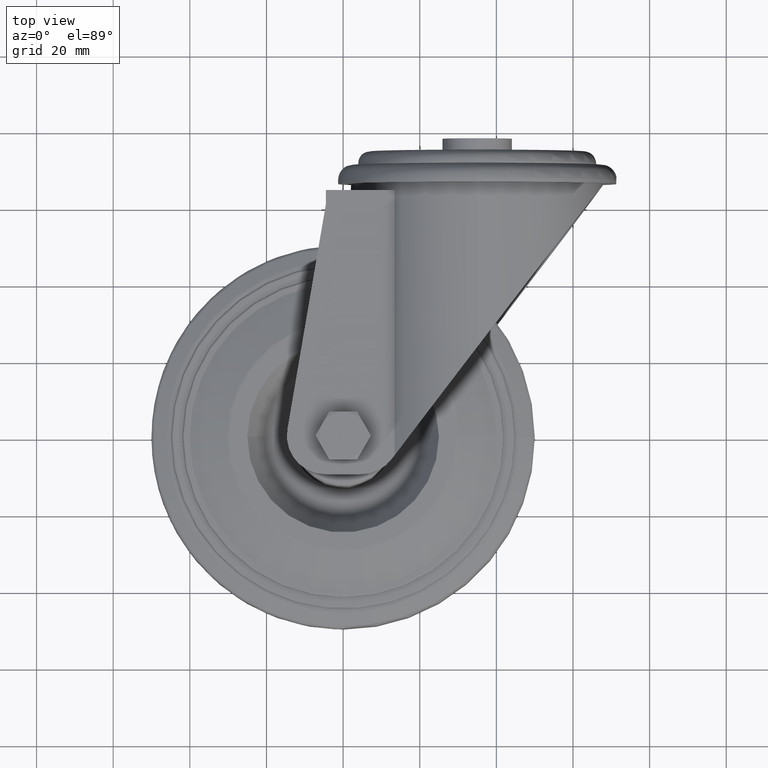
[diagram: clean part render]
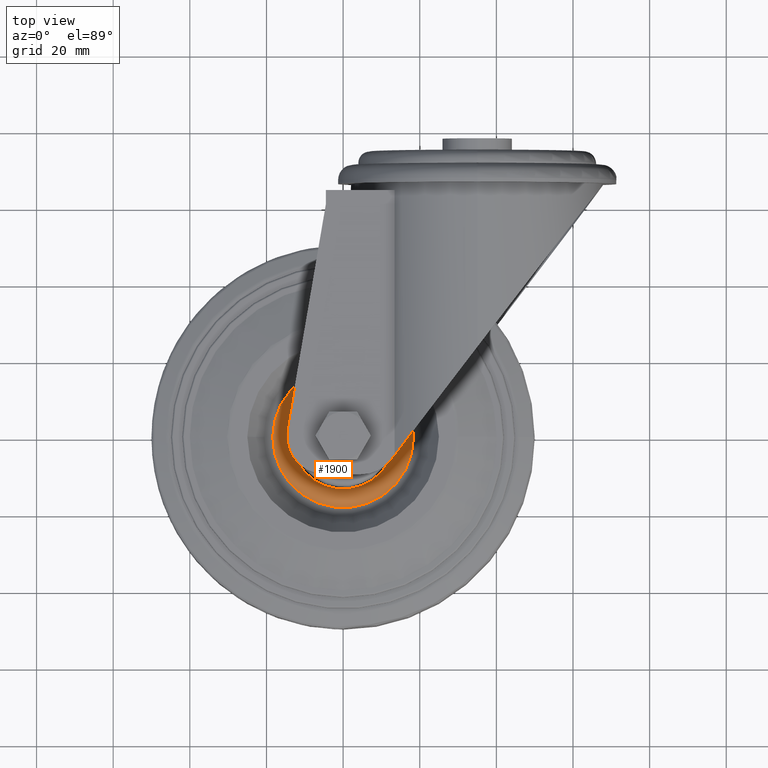
[diagram: same view with one face highlighted and labeled with its STEP entity id]
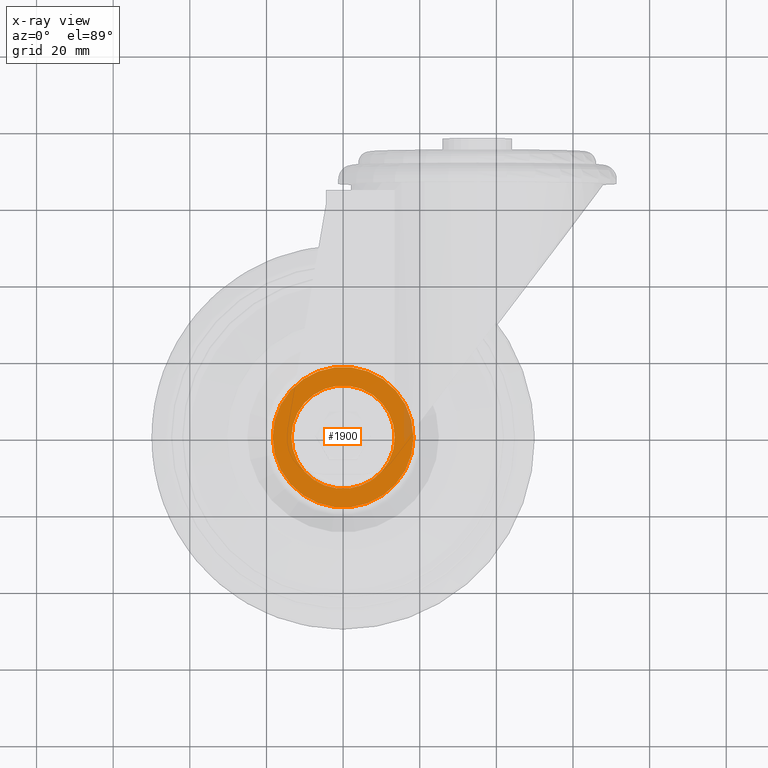
[diagram: x-ray of the same camera — body ghosted, the highlighted face saturated]
A machine part, top view. The second image highlights one B-rep face of the part: STEP entity #1900.
The next image is the same camera in x-ray: the body ghosted, the highlighted face saturated — about 3% of this face is hidden behind the body in this view.
In plain terms, the highlighted planar face has unit normal (-0, 0, 1).
Its self-contained STEP definition (entity closure, byte-faithful):
#200=FACE_BOUND('',#505,.T.);
#250=PLANE('',#2235);
#356=FACE_OUTER_BOUND('',#504,.T.);
#504=EDGE_LOOP('',(#1665));
#505=EDGE_LOOP('',(#1666));
#630=CIRCLE('',#2234,18.3604719043193);
#631=CIRCLE('',#2236,13.4716700135474);
#957=VERTEX_POINT('',#3465);
#958=VERTEX_POINT('',#3469);
#1197=EDGE_CURVE('',#957,#957,#630,.T.);
#1198=EDGE_CURVE('',#958,#958,#631,.T.);
#1665=ORIENTED_EDGE('',*,*,#1197,.F.);
#1666=ORIENTED_EDGE('',*,*,#1198,.F.);
#1900=ADVANCED_FACE('',(#356,#200),#250,.T.);
#2234=AXIS2_PLACEMENT_3D('',#3467,#2768,#2769);
#2235=AXIS2_PLACEMENT_3D('',#3468,#2770,#2771);
#2236=AXIS2_PLACEMENT_3D('',#3470,#2772,#2773);
#2768=DIRECTION('center_axis',(6.12323399573677E-17,0.,-1.));
#2769=DIRECTION('ref_axis',(-1.,0.,-6.12323399573677E-17));
#2770=DIRECTION('center_axis',(-6.12323399573677E-17,0.,1.));
#2771=DIRECTION('ref_axis',(1.,0.,6.12323399573677E-17));
#2772=DIRECTION('center_axis',(-6.12323399573677E-17,0.,1.));
#2773=DIRECTION('ref_axis',(1.,0.,6.12323399573677E-17));
#3465=CARTESIAN_POINT('',(18.3604719043193,-2.24850931484595E-15,6.));
#3467=CARTESIAN_POINT('Origin',(-3.67394039744206E-16,0.,6.));
#3468=CARTESIAN_POINT('Origin',(-18.3604719043193,0.,6.));
#3469=CARTESIAN_POINT('',(13.4716700135474,0.,6.));
#3470=CARTESIAN_POINT('Origin',(-3.67394039744206E-16,0.,6.));